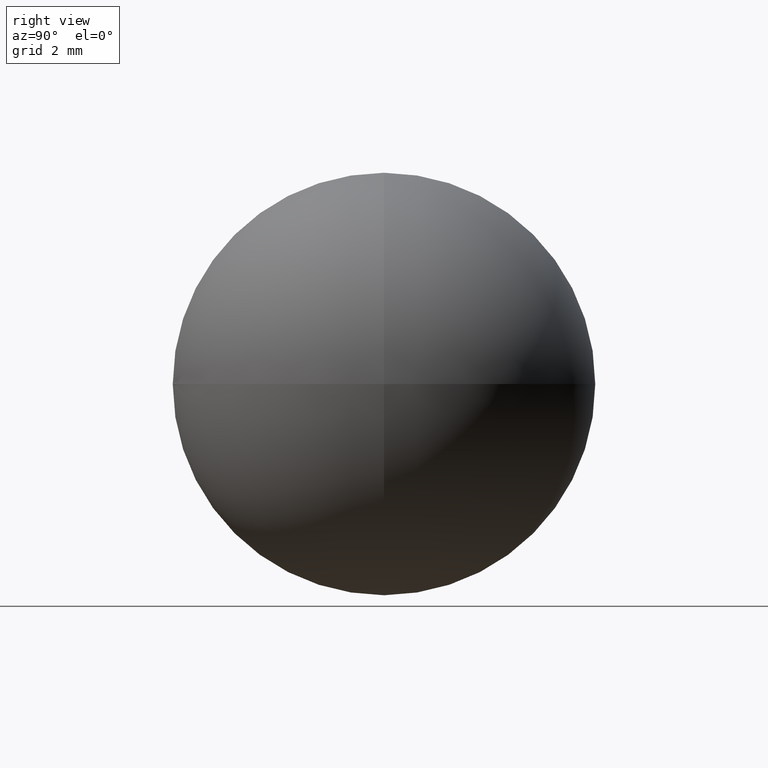
[diagram: clean part render]
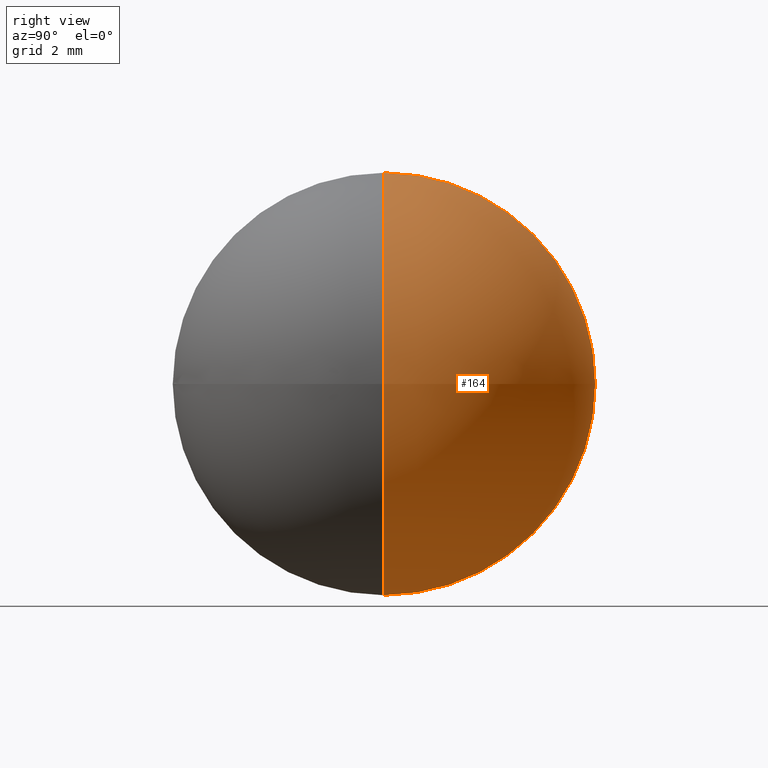
[diagram: same view with one face highlighted and labeled with its STEP entity id]
A machine part, right view. The second image highlights one B-rep face of the part: STEP entity #164.
In plain terms, the highlighted spherical surface has radius 5 mm.
Its self-contained STEP definition (entity closure, byte-faithful):
#3 = CIRCLE ( 'NONE', #79, 5.000000000000000000 ) ;
#6 = EDGE_CURVE ( 'NONE', #172, #42, #3, .T. ) ;
#18 = CARTESIAN_POINT ( 'NONE',  ( 0.0000000000000000000, 0.0000000000000000000, 0.0000000000000000000 ) ) ;
#20 = DIRECTION ( 'NONE',  ( 1.224646799147353200E-016, -1.000000000000000000, 0.0000000000000000000 ) ) ;
#32 = FACE_OUTER_BOUND ( 'NONE', #104, .T. ) ;
#35 = AXIS2_PLACEMENT_3D ( 'NONE', #66, #127, #139 ) ;
#42 = VERTEX_POINT ( 'NONE', #156 ) ;
#65 = SPHERICAL_SURFACE ( 'NONE', #35, 5.000000000000000000 ) ;
#66 = CARTESIAN_POINT ( 'NONE',  ( 0.0000000000000000000, 0.0000000000000000000, 0.0000000000000000000 ) ) ;
#79 = AXIS2_PLACEMENT_3D ( 'NONE', #18, #20, #175 ) ;
#83 = DIRECTION ( 'NONE',  ( 0.0000000000000000000, 0.0000000000000000000, 1.000000000000000000 ) ) ;
#102 = DIRECTION ( 'NONE',  ( 0.0000000000000000000, 1.000000000000000000, -0.0000000000000000000 ) ) ;
#104 = EDGE_LOOP ( 'NONE', ( #157, #121 ) ) ;
#121 = ORIENTED_EDGE ( 'NONE', *, *, #203, .T. ) ;
#127 = DIRECTION ( 'NONE',  ( 0.0000000000000000000, -1.000000000000000000, -0.0000000000000000000 ) ) ;
#139 = DIRECTION ( 'NONE',  ( 1.000000000000000000, 0.0000000000000000000, 0.0000000000000000000 ) ) ;
#151 = CIRCLE ( 'NONE', #182, 5.000000000000000000 ) ;
#156 = CARTESIAN_POINT ( 'NONE',  ( 3.061616997868383100E-016, 0.0000000000000000000, -5.000000000000000000 ) ) ;
#157 = ORIENTED_EDGE ( 'NONE', *, *, #6, .F. ) ;
#164 = ADVANCED_FACE ( 'NONE', ( #32 ), #65, .T. ) ;
#172 = VERTEX_POINT ( 'NONE', #190 ) ;
#175 = DIRECTION ( 'NONE',  ( 1.000000000000000000, 1.224646799147353200E-016, 0.0000000000000000000 ) ) ;
#182 = AXIS2_PLACEMENT_3D ( 'NONE', #191, #102, #83 ) ;
#190 = CARTESIAN_POINT ( 'NONE',  ( 3.061616997868383100E-016, 0.0000000000000000000, 5.000000000000000000 ) ) ;
#191 = CARTESIAN_POINT ( 'NONE',  ( 0.0000000000000000000, 0.0000000000000000000, 0.0000000000000000000 ) ) ;
#203 = EDGE_CURVE ( 'NONE', #172, #42, #151, .T. ) ;